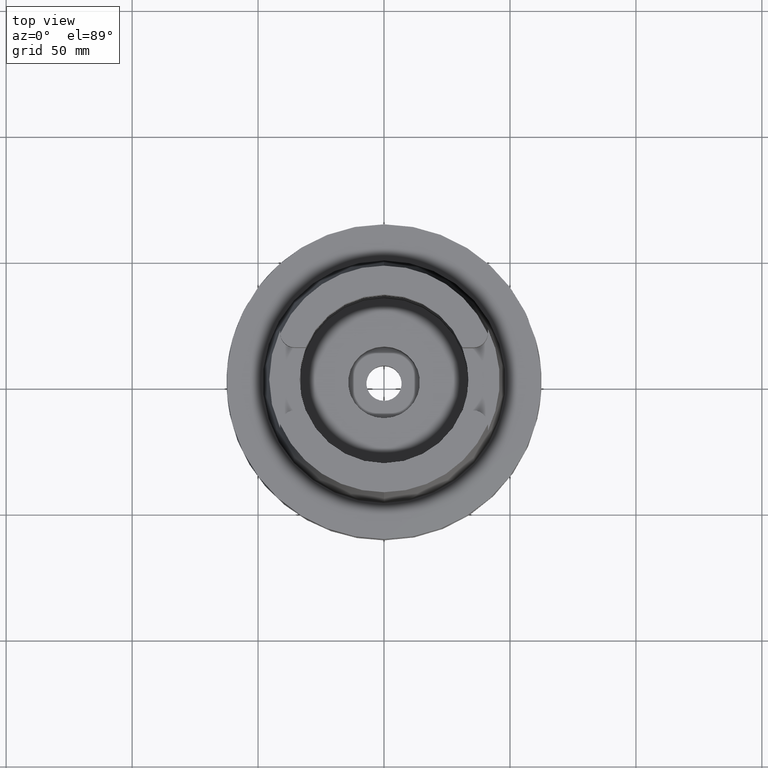
[diagram: clean part render]
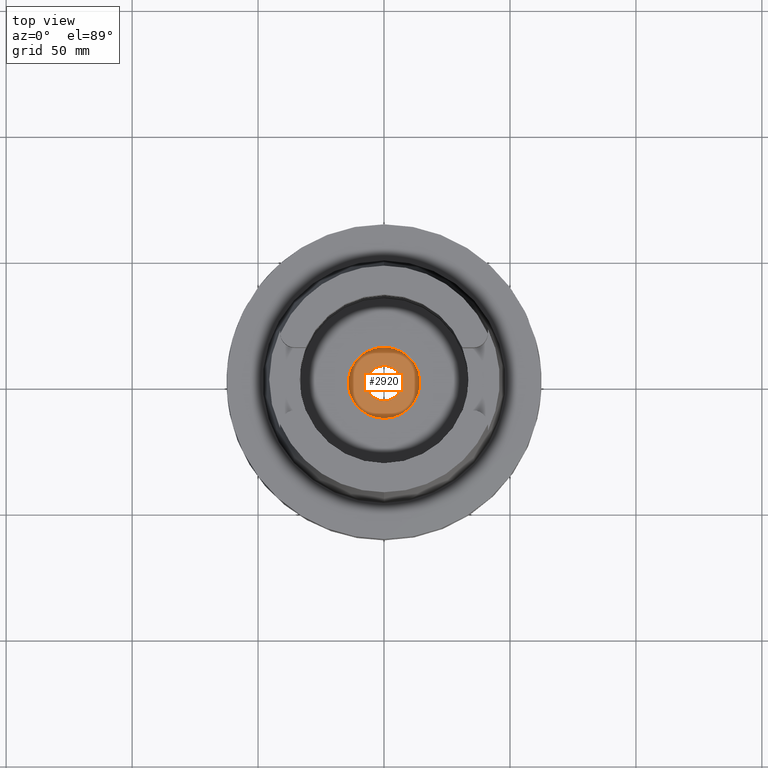
[diagram: same view with one face highlighted and labeled with its STEP entity id]
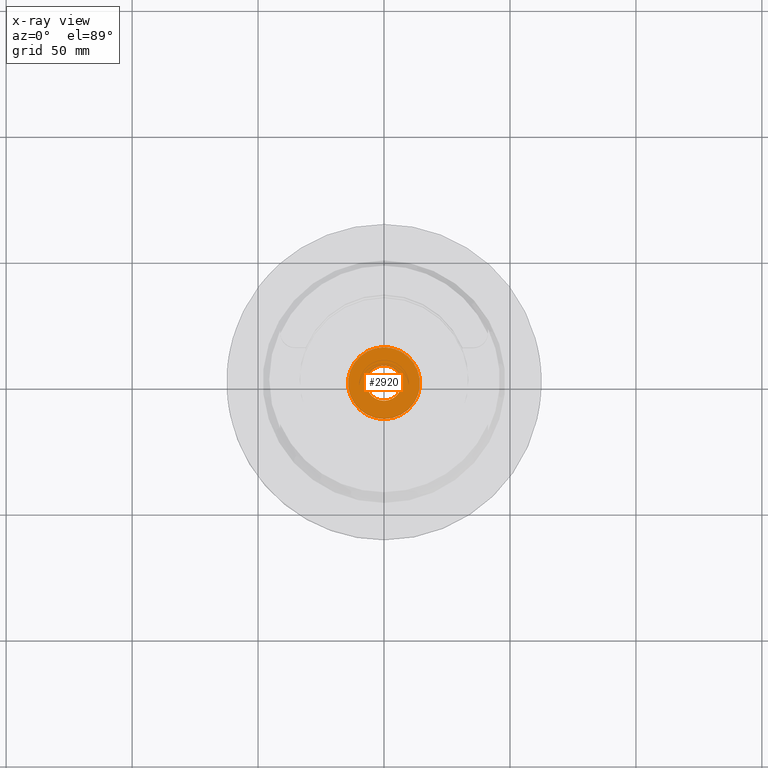
[diagram: x-ray of the same camera — body ghosted, the highlighted face saturated]
A machine part, top view. The second image highlights one B-rep face of the part: STEP entity #2920.
The next image is the same camera in x-ray: the body ghosted, the highlighted face saturated — about 0% of this face is hidden behind the body in this view.
In plain terms, the highlighted planar face has unit normal (0, 0, -1).
Its self-contained STEP definition (entity closure, byte-faithful):
#597=CARTESIAN_POINT('',(0.E0,1.524930194298E-14,-3.395E1));
#598=DIRECTION('',(0.E0,0.E0,-1.E0));
#599=DIRECTION('',(0.E0,-1.E0,0.E0));
#600=AXIS2_PLACEMENT_3D('',#597,#598,#599);
#605=CARTESIAN_POINT('',(0.E0,1.524930194298E-14,-3.395E1));
#606=DIRECTION('',(0.E0,0.E0,-1.E0));
#607=DIRECTION('',(0.E0,1.E0,0.E0));
#608=AXIS2_PLACEMENT_3D('',#605,#606,#607);
#613=CARTESIAN_POINT('',(0.E0,1.524930194298E-14,-3.395E1));
#614=DIRECTION('',(0.E0,0.E0,1.E0));
#615=DIRECTION('',(0.E0,-1.E0,0.E0));
#616=AXIS2_PLACEMENT_3D('',#613,#614,#615);
#621=CARTESIAN_POINT('',(0.E0,1.524930194298E-14,-3.395E1));
#622=DIRECTION('',(0.E0,0.E0,1.E0));
#623=DIRECTION('',(0.E0,1.E0,0.E0));
#624=AXIS2_PLACEMENT_3D('',#621,#622,#623);
#2213=CARTESIAN_POINT('',(0.E0,1.425E1,-3.395E1));
#2214=VERTEX_POINT('',#2213);
#2215=CARTESIAN_POINT('',(0.E0,-1.425E1,-3.395E1));
#2216=VERTEX_POINT('',#2215);
#2217=CARTESIAN_POINT('',(0.E0,-7.E0,-3.395E1));
#2218=CARTESIAN_POINT('',(0.E0,7.E0,-3.395E1));
#2219=VERTEX_POINT('',#2217);
#2220=VERTEX_POINT('',#2218);
#2905=CARTESIAN_POINT('',(0.E0,0.E0,-3.395E1));
#2906=DIRECTION('',(0.E0,0.E0,-1.E0));
#2907=DIRECTION('',(0.E0,-1.E0,0.E0));
#2908=AXIS2_PLACEMENT_3D('',#2905,#2906,#2907);
#2909=PLANE('',#2908);
#2910=ORIENTED_EDGE('',*,*,#2898,.T.);
#2911=ORIENTED_EDGE('',*,*,#2887,.T.);
#2912=EDGE_LOOP('',(#2910,#2911));
#2913=FACE_OUTER_BOUND('',#2912,.F.);
#2915=ORIENTED_EDGE('',*,*,#2914,.T.);
#2917=ORIENTED_EDGE('',*,*,#2916,.T.);
#2918=EDGE_LOOP('',(#2915,#2917));
#2919=FACE_BOUND('',#2918,.F.);
#601=CIRCLE('',#600,1.425E1);
#609=CIRCLE('',#608,1.425E1);
#617=CIRCLE('',#616,7.E0);
#625=CIRCLE('',#624,7.E0);
#2887=EDGE_CURVE('',#2214,#2216,#609,.T.);
#2898=EDGE_CURVE('',#2216,#2214,#601,.T.);
#2914=EDGE_CURVE('',#2219,#2220,#617,.T.);
#2916=EDGE_CURVE('',#2220,#2219,#625,.T.);
#2920=ADVANCED_FACE('',(#2913,#2919),#2909,.F.);